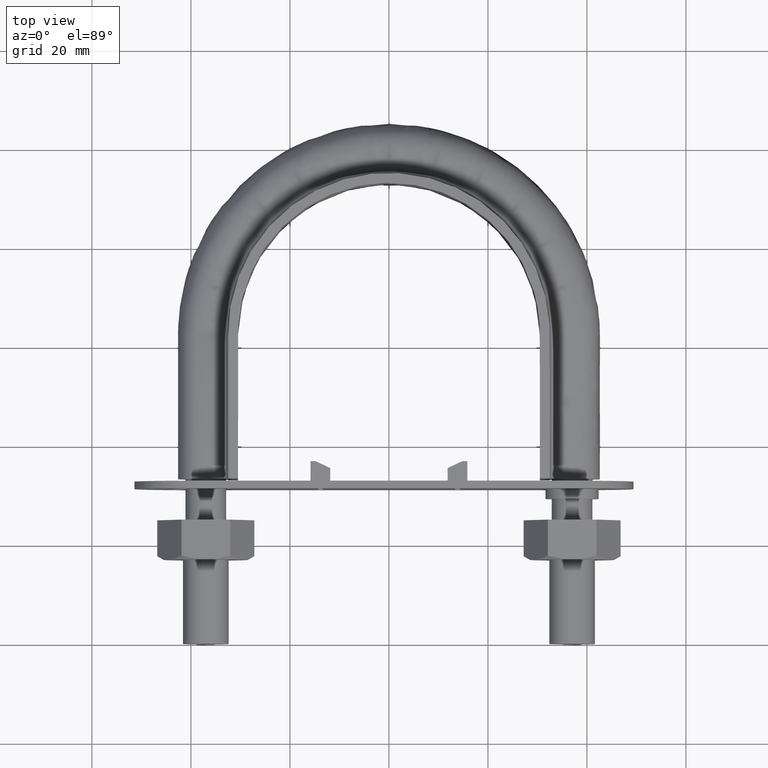
[diagram: clean part render]
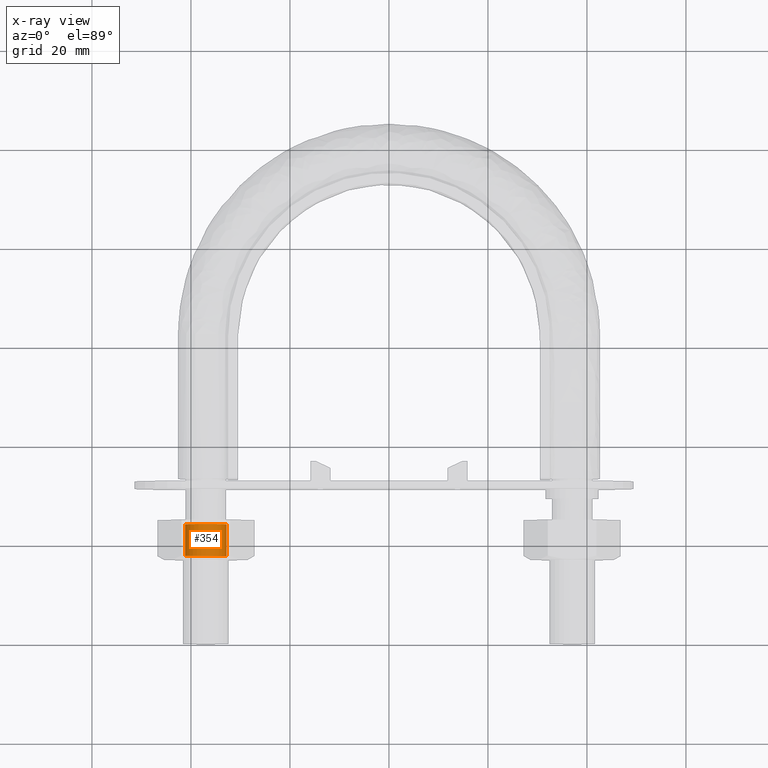
[diagram: x-ray — body ghosted, one internal face saturated and labeled with its STEP entity id]
A machine part, top view, then the same camera in x-ray: the body is ghosted and one INTERNAL B-rep face — a face not visible from any outside direction — is saturated and labeled: STEP entity #354.
In plain terms, the highlighted cylindrical surface (bore or boss wall) has radius 4.188 mm, axis along (0, 1, -0).
Its self-contained STEP definition (entity closure, byte-faithful):
#354 = ADVANCED_FACE( '', ( #578, #579 ), #580, .F. );
#578 = FACE_OUTER_BOUND( '', #1656, .T. );
#579 = FACE_OUTER_BOUND( '', #1657, .T. );
#580 = CYLINDRICAL_SURFACE( '', #1658, 4.18799999999973 );
#1656 = EDGE_LOOP( '', ( #2339 ) );
#1657 = EDGE_LOOP( '', ( #2340 ) );
#1658 = AXIS2_PLACEMENT_3D( '', #2341, #2342, #2343 );
#2339 = ORIENTED_EDGE( '', *, *, #2698, .F. );
#2340 = ORIENTED_EDGE( '', *, *, #2666, .T. );
#2341 = CARTESIAN_POINT( '', ( -37.0000000000000, 25.0000000000000, -1.56749613289264E-015 ) );
#2342 = DIRECTION( '', ( 2.44921270764476E-016, 1.00000000000000, -6.12303176911189E-017 ) );
#2343 = DIRECTION( '', ( -6.99440505513849E-015, -6.12303176911172E-017, -1.00000000000000 ) );
#2666 = EDGE_CURVE( '', #3002, #3002, #3003, .T. );
#2698 = EDGE_CURVE( '', #3051, #3051, #3052, .F. );
#3002 = VERTEX_POINT( '', #3746 );
#3003 = CIRCLE( '', #3747, 4.18799999999973 );
#3051 = VERTEX_POINT( '', #3834 );
#3052 = CIRCLE( '', #3835, 4.18799999999973 );
#3746 = CARTESIAN_POINT( '', ( -41.1879999999997, 24.1880000000000, -1.51777711492746E-015 ) );
#3747 = AXIS2_PLACEMENT_3D( '', #4200, #4201, #4202 );
#3834 = CARTESIAN_POINT( '', ( -32.8120000000003, 17.8120000000003, -1.12737260932890E-015 ) );
#3835 = AXIS2_PLACEMENT_3D( '', #4253, #4254, #4255 );
#4200 = CARTESIAN_POINT( '', ( -37.0000000000000, 24.1880000000000, -1.51777711492746E-015 ) );
#4201 = DIRECTION( '', ( 2.44921270764476E-016, 1.00000000000000, -6.12303176911189E-017 ) );
#4202 = DIRECTION( '', ( -1.00000000000000, 2.44921270764476E-016, 0.000000000000000 ) );
#4253 = CARTESIAN_POINT( '', ( -37.0000000000000, 17.8120000000003, -1.12737260932890E-015 ) );
#4254 = DIRECTION( '', ( -2.44921270764476E-016, -1.00000000000000, 6.12303176911189E-017 ) );
#4255 = DIRECTION( '', ( 1.00000000000000, -2.44921270764476E-016, 0.000000000000000 ) );